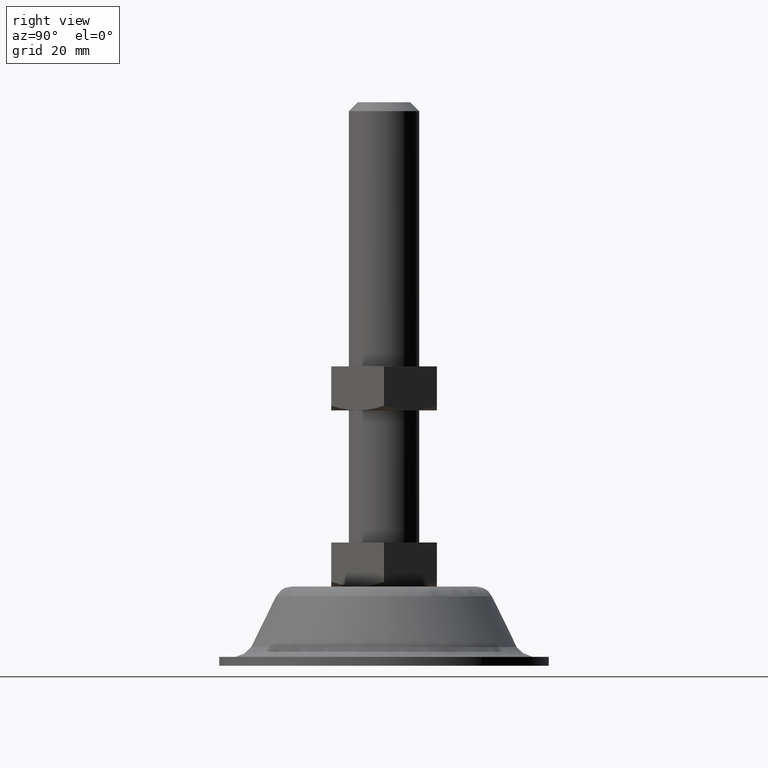
[diagram: clean part render]
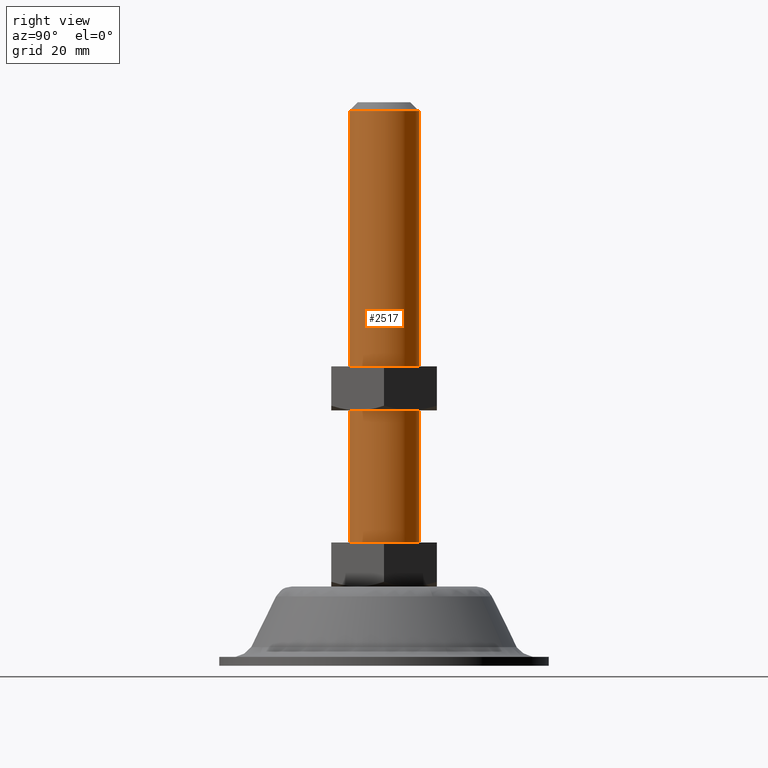
[diagram: same view with one face highlighted and labeled with its STEP entity id]
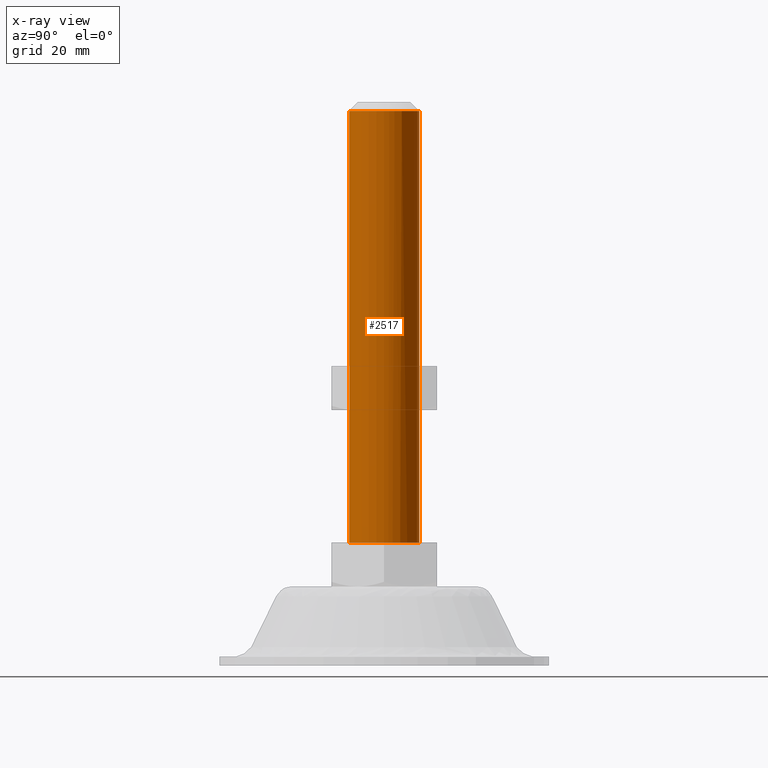
[diagram: x-ray of the same camera — body ghosted, the highlighted face saturated]
A machine part, right view. The second image highlights one B-rep face of the part: STEP entity #2517.
The next image is the same camera in x-ray: the body ghosted, the highlighted face saturated — about 0% of this face is hidden behind the body in this view.
In plain terms, the highlighted face is a freeform B-spline surface patch.
Its self-contained STEP definition (entity closure, byte-faithful):
#2324=CARTESIAN_POINT('',(1.407112720970552,-7.875279918230389,126.0));
#2325=VERTEX_POINT('',#2324);
#2358=CARTESIAN_POINT('',(-0.488388316431298,7.985078387365611,126.0));
#2359=VERTEX_POINT('',#2358);
#2373=CARTESIAN_POINT('',(-0.488388316431298,7.985078387365611,28.0));
#2374=VERTEX_POINT('',#2373);
#2375=CARTESIAN_POINT('',(-0.488388316431298,7.985078387365611,126.0));
#2376=CARTESIAN_POINT('',(-0.488388316431298,7.985078387365611,28.0));
#2377=QUASI_UNIFORM_CURVE('',1,(#2375,#2376),.UNSPECIFIED.,.F.,.U.);
#2378=EDGE_CURVE('',#2359,#2374,#2377,.T.);
#2395=CARTESIAN_POINT('',(1.407112720970552,-7.875279918230389,28.0));
#2396=VERTEX_POINT('',#2395);
#2412=CARTESIAN_POINT('',(1.407112720970552,-7.875279918230389,126.0));
#2413=CARTESIAN_POINT('',(1.407112720970552,-7.875279918230389,28.0));
#2414=QUASI_UNIFORM_CURVE('',1,(#2412,#2413),.UNSPECIFIED.,.F.,.U.);
#2415=EDGE_CURVE('',#2325,#2396,#2414,.T.);
#2420=CARTESIAN_POINT('',(-0.488388316278856,7.985078387374934,128.449999999999990));
#2421=CARTESIAN_POINT('',(7.496690071096078,8.473466703653790,128.450000000000020));
#2422=CARTESIAN_POINT('',(7.985078387374934,0.488388316278856,128.449999999999990));
#2423=CARTESIAN_POINT('',(8.419984129802099,-6.622257718131118,128.450000000000020));
#2424=CARTESIAN_POINT('',(1.407112720920958,-7.875279918239248,128.450000000000070));
#2425=CARTESIAN_POINT('',(-0.488388316278856,7.985078387374934,25.488750000000000));
#2426=CARTESIAN_POINT('',(7.496690071096078,8.473466703653790,25.488749999999996));
#2427=CARTESIAN_POINT('',(7.985078387374934,0.488388316278856,25.488750000000000));
#2428=CARTESIAN_POINT('',(8.419984129802099,-6.622257718131118,25.488749999999992));
#2429=CARTESIAN_POINT('',(1.407112720920958,-7.875279918239248,25.488750000000003));
#2437=(BOUNDED_SURFACE()B_SPLINE_SURFACE(2,1,((#2420,#2425),(#2421,#2426),(#2422,#2427),(#2423,#2428),(#2424,#2429)),.UNSPECIFIED.,.F.,.F.,.U.)B_SPLINE_SURFACE_WITH_KNOTS((3,2,3),(2,2),(0.0,13.254833995939039,25.449281272202949),(0.0,102.961250000000010),.UNSPECIFIED.)GEOMETRIC_REPRESENTATION_ITEM()RATIONAL_B_SPLINE_SURFACE(((1.0,1.0),(0.707106781186548,0.707106781186548),(1.0,1.0),(0.730538238691624,0.730538238691624),(0.956886118190660,0.956886118190660)))REPRESENTATION_ITEM('')SURFACE());
#2438=CARTESIAN_POINT('',(8.0,0.0,126.0));
#2439=VERTEX_POINT('',#2438);
#2440=CARTESIAN_POINT('',(8.0,0.0,126.0));
#2441=CARTESIAN_POINT('',(8.0,-6.697298226797478,126.000000000000030));
#2442=CARTESIAN_POINT('',(1.407112720970551,-7.875279918230389,125.999999999999990));
#2450=(BOUNDED_CURVE()B_SPLINE_CURVE(2,(#2440,#2441,#2442),.UNSPECIFIED.,.F.,.U.)B_SPLINE_CURVE_WITH_KNOTS((3,3),(0.0,0.219772409025256),.UNSPECIFIED.)CURVE()GEOMETRIC_REPRESENTATION_ITEM()RATIONAL_B_SPLINE_CURVE((1.0,0.742520606856824,0.937736145757143))REPRESENTATION_ITEM(''));
#2451=EDGE_CURVE('',#2439,#2325,#2450,.T.);
#2452=ORIENTED_EDGE('',*,*,#2451,.T.);
#2453=ORIENTED_EDGE('',*,*,#2415,.T.);
#2454=CARTESIAN_POINT('',(8.0,0.0,28.0));
#2455=VERTEX_POINT('',#2454);
#2456=CARTESIAN_POINT('',(8.0,0.0,28.0));
#2457=CARTESIAN_POINT('',(8.0,-6.697298226797478,28.000000000000011));
#2458=CARTESIAN_POINT('',(1.407112720970551,-7.875279918230389,27.999999999999996));
#2466=(BOUNDED_CURVE()B_SPLINE_CURVE(2,(#2456,#2457,#2458),.UNSPECIFIED.,.F.,.U.)B_SPLINE_CURVE_WITH_KNOTS((3,3),(0.0,0.219772409025256),.UNSPECIFIED.)CURVE()GEOMETRIC_REPRESENTATION_ITEM()RATIONAL_B_SPLINE_CURVE((1.0,0.742520606856824,0.937736145757143))REPRESENTATION_ITEM(''));
#2467=EDGE_CURVE('',#2455,#2396,#2466,.T.);
#2468=ORIENTED_EDGE('',*,*,#2467,.F.);
#2469=CARTESIAN_POINT('',(-0.488388316431299,7.985078387365611,28.0));
#2470=CARTESIAN_POINT('',(-0.244422106541581,8.0,27.999999999999996));
#2471=CARTESIAN_POINT('',(0.0,8.0,28.0));
#2472=CARTESIAN_POINT('',(8.0,8.0,27.999999999999996));
#2473=CARTESIAN_POINT('',(8.0,0.0,28.0));
#2481=(BOUNDED_CURVE()B_SPLINE_CURVE(2,(#2469,#2470,#2471,#2472,#2473),.UNSPECIFIED.,.F.,.U.)B_SPLINE_CURVE_WITH_KNOTS((3,2,3),(0.739332962235380,0.750000000000000,1.0),.UNSPECIFIED.)CURVE()GEOMETRIC_REPRESENTATION_ITEM()RATIONAL_B_SPLINE_CURVE((0.976072041659082,0.987502787895663,1.0,0.707106781186548,1.0))REPRESENTATION_ITEM(''));
#2482=EDGE_CURVE('',#2374,#2455,#2481,.T.);
#2483=ORIENTED_EDGE('',*,*,#2482,.F.);
#2484=ORIENTED_EDGE('',*,*,#2378,.F.);
#2485=CARTESIAN_POINT('',(0.993024017373653,7.938129710605528,125.999999999907600));
#2486=VERTEX_POINT('',#2485);
#2487=CARTESIAN_POINT('',(-0.488388316431299,7.985078387365611,125.999999999999940));
#2488=CARTESIAN_POINT('',(-0.244422106541581,8.0,126.000000000000010));
#2489=CARTESIAN_POINT('',(0.0,8.0,126.0));
#2490=CARTESIAN_POINT('',(0.498439420999992,8.0,126.0));
#2491=CARTESIAN_POINT('',(0.993024017373653,7.938129710605529,125.999999999907540));
#2499=(BOUNDED_CURVE()B_SPLINE_CURVE(2,(#2487,#2488,#2489,#2490,#2491),.UNSPECIFIED.,.F.,.U.)B_SPLINE_CURVE_WITH_KNOTS((3,2,3),(0.739332962235380,0.750000000000000,0.771473929001446),.UNSPECIFIED.)CURVE()GEOMETRIC_REPRESENTATION_ITEM()RATIONAL_B_SPLINE_CURVE((0.976072041659082,0.987502787895663,1.0,0.974841727256780,0.954005430215056))REPRESENTATION_ITEM(''));
#2500=EDGE_CURVE('',#2359,#2486,#2499,.T.);
#2501=ORIENTED_EDGE('',*,*,#2500,.T.);
#2502=CARTESIAN_POINT('',(0.993024017373653,7.938129710605529,125.999999999907590));
#2503=CARTESIAN_POINT('',(8.0,7.061588799904500,126.0));
#2504=CARTESIAN_POINT('',(8.0,0.0,126.0));
#2512=(BOUNDED_CURVE()B_SPLINE_CURVE(2,(#2502,#2503,#2504),.UNSPECIFIED.,.F.,.U.)B_SPLINE_CURVE_WITH_KNOTS((3,3),(0.771473929001445,1.0),.UNSPECIFIED.)CURVE()GEOMETRIC_REPRESENTATION_ITEM()RATIONAL_B_SPLINE_CURVE((0.954005430215058,0.732265053929766,1.0))REPRESENTATION_ITEM(''));
#2513=EDGE_CURVE('',#2486,#2439,#2512,.T.);
#2514=ORIENTED_EDGE('',*,*,#2513,.T.);
#2515=EDGE_LOOP('',(#2452,#2453,#2468,#2483,#2484,#2501,#2514));
#2516=FACE_OUTER_BOUND('',#2515,.T.);
#2517=ADVANCED_FACE('',(#2516),#2437,.T.);